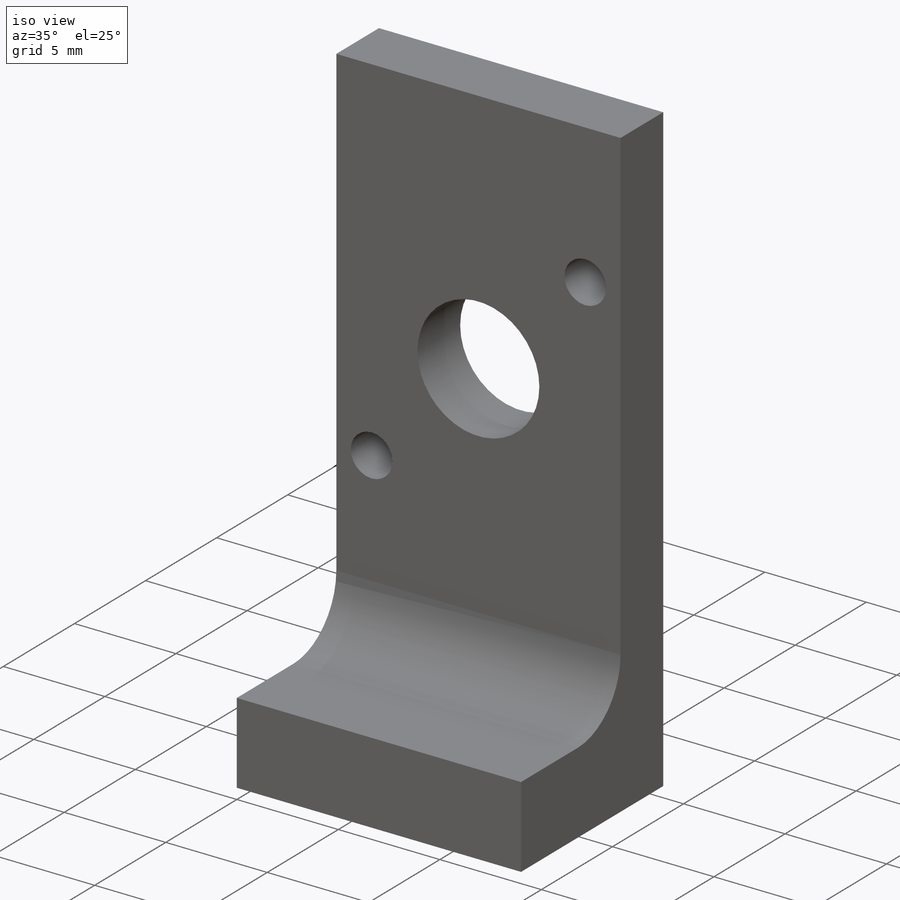
[diagram: iso view]
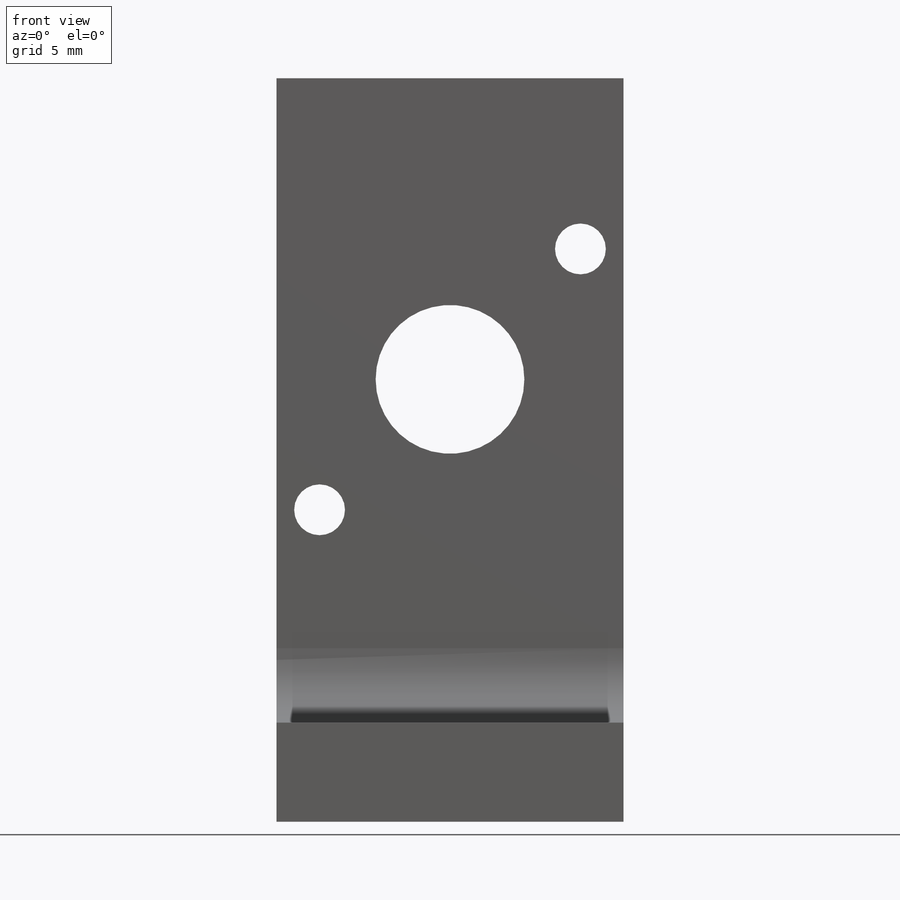
[diagram: front view]
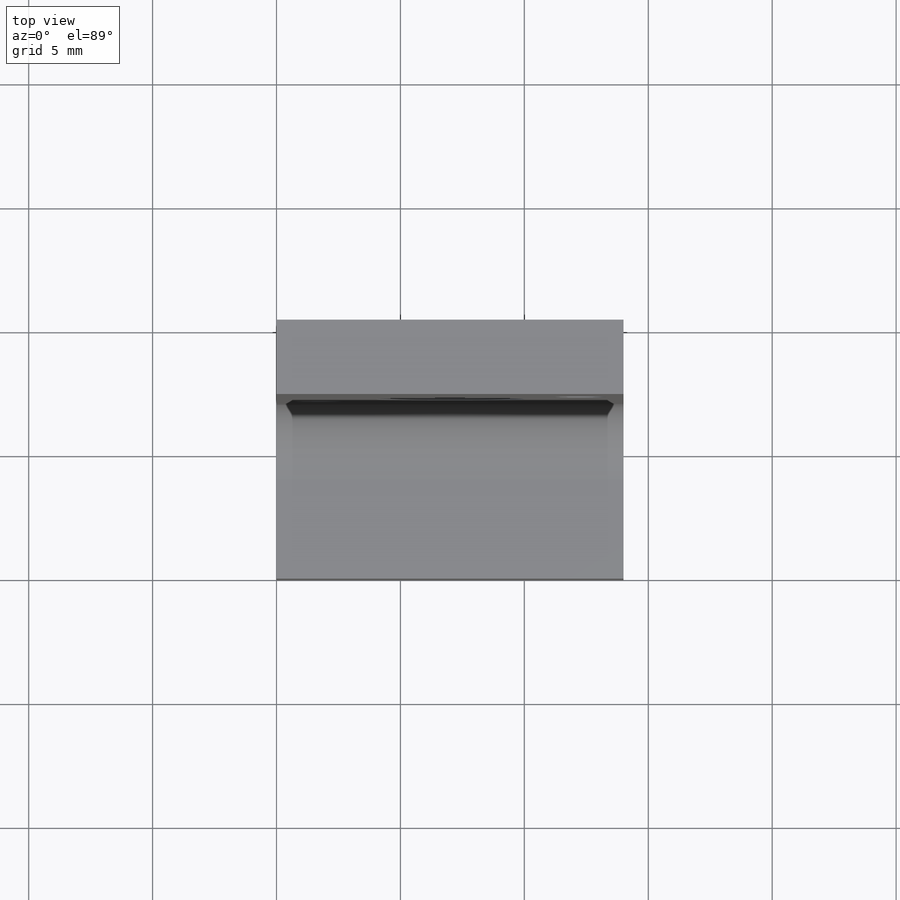
[diagram: top view]
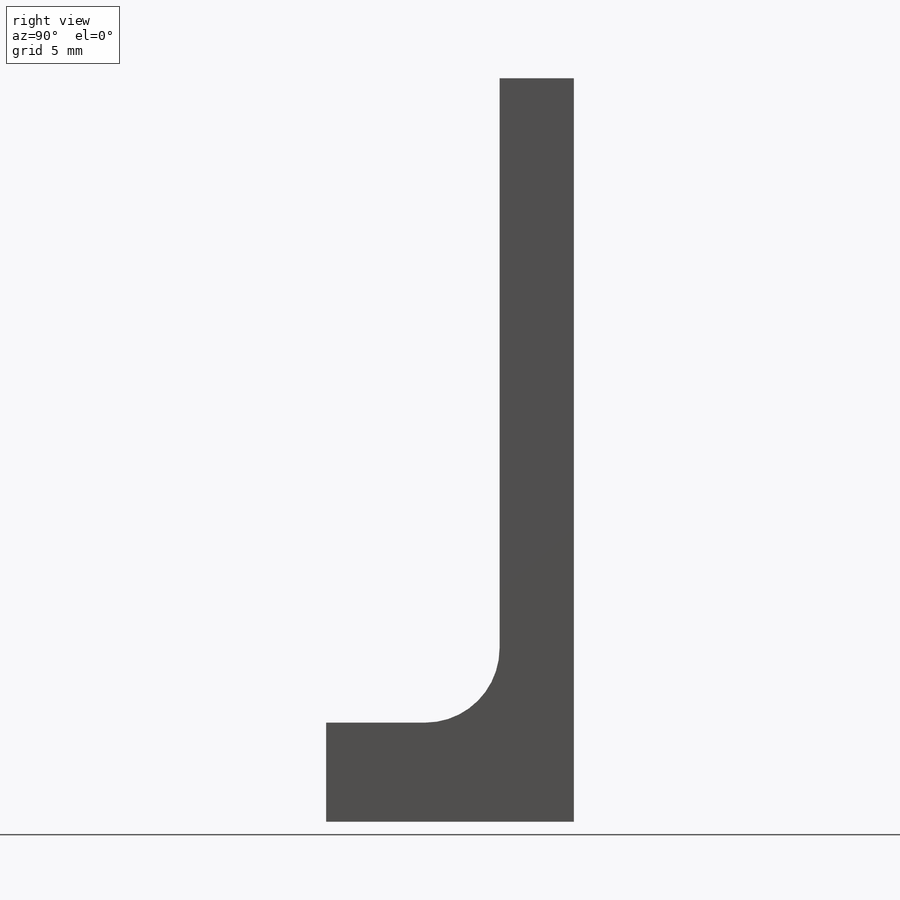
[diagram: right view]
SOLIDWORKS PART (.sldprt)
format: sldprt  version: not decoded by parser v0  size: 233,472 bytes
history: native  units: mm
features: sketch x6, hole x2, material x1, extrude x1, cut_extrude x1 (+11 scaffold rows collapsed)
feature tree (22):
  scaffold x11  (default folders/planes/origin — collapsed)
  material  "Material <not specified>"
  sketch  "Sketch1"  dims[D1=3.0mm D2=4.0mm D3=3.0mm D4=10.0mm D5=30.0mm]
  extrude  "Boss-Extrude1"  Depth=14mm
  hole  "Tap Drill for M3x0.5 Tap1"  Diameter=2.5mm Depth=3mm
  sketch  "Sketch3"  dims[D1=3.0mm D2=3.0mm D3=3.0mm D4=3.0mm D5=10.0mm]
  sketch  "Sketch2"  dims[hole-wizard template sketch: 47 standard entries collapsed; hole parameters kept: c15.Hole Depth=3.0mm c15.D3=~14.816244mm c15.Drill Angle=118.0deg]
  sketch  "Sketch4"  dims[D1=6.0mm D2=17.85mm D3=7.0mm]
  cut_extrude  "Cut-Extrude1"  [1 undecoded]
  hole  "Tap Drill for M2.5x0.45 Tap1"  Diameter=2.05mm Depth=3mm
  sketch  "Sketch6"  dims[c1.D1=12.58mm c1.D2=23.11mm c1.D3=1.74mm c1.D4=1.74mm c1.D5=~14.884599mm c2.D4=~14.877547mm c2.D1=14.8844mm c2.D2=5.26mm c3.D2=45.0deg]
  sketch  "Sketch5"  dims[hole-wizard template sketch: 60 standard entries collapsed; hole parameters kept: c18.Thru Hole Depth=3.0mm]
decode coverage: 9 of 10 modeling features carry decoded parameters
note: ~ marks probable driven/reference dimensions
note: 1 parameter value undecoded
note: suppression state not decoded; provenance and decode notes live in map.json
